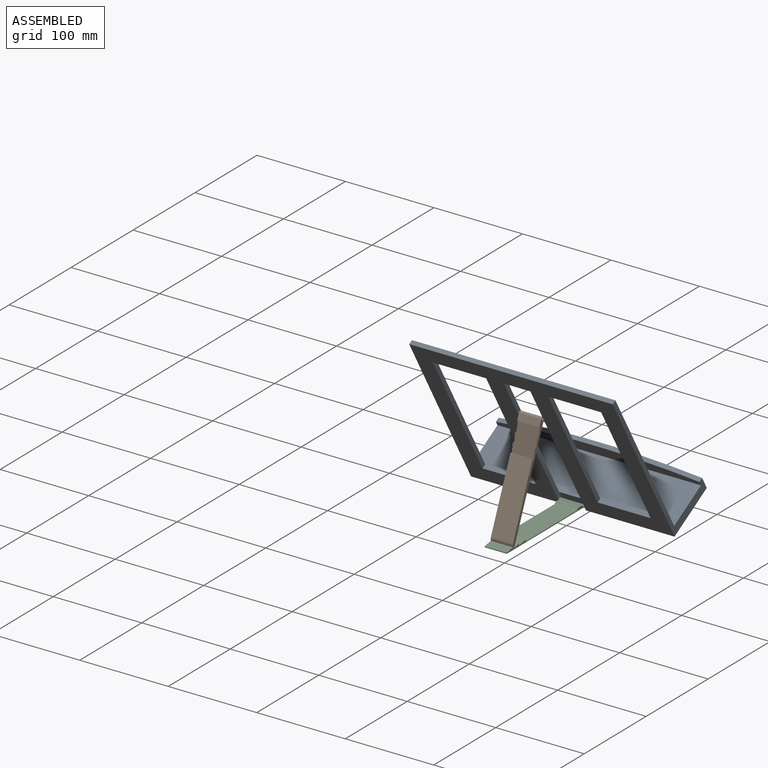
[diagram: assembled view]
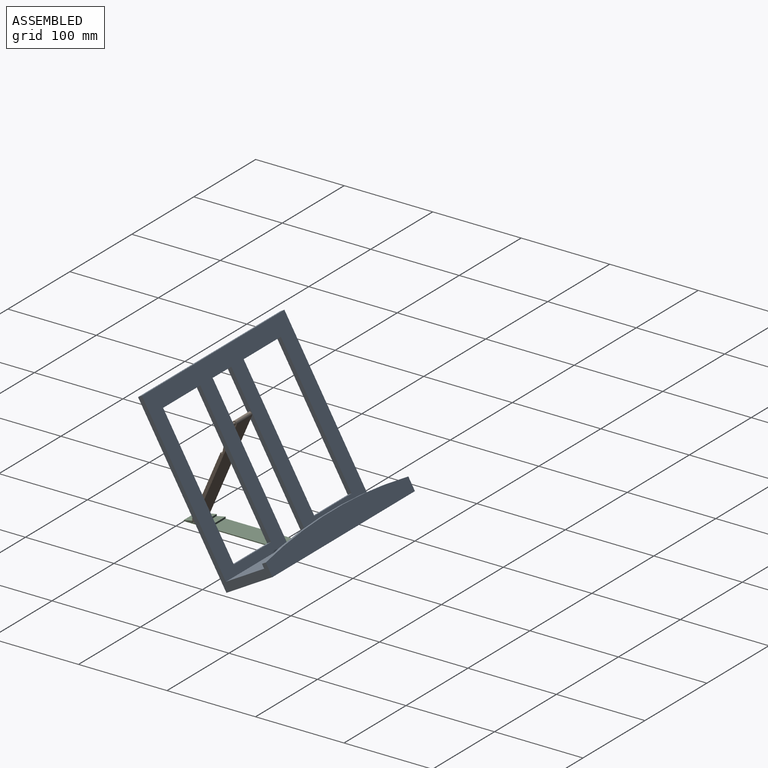
[diagram: assembled view, second angle]
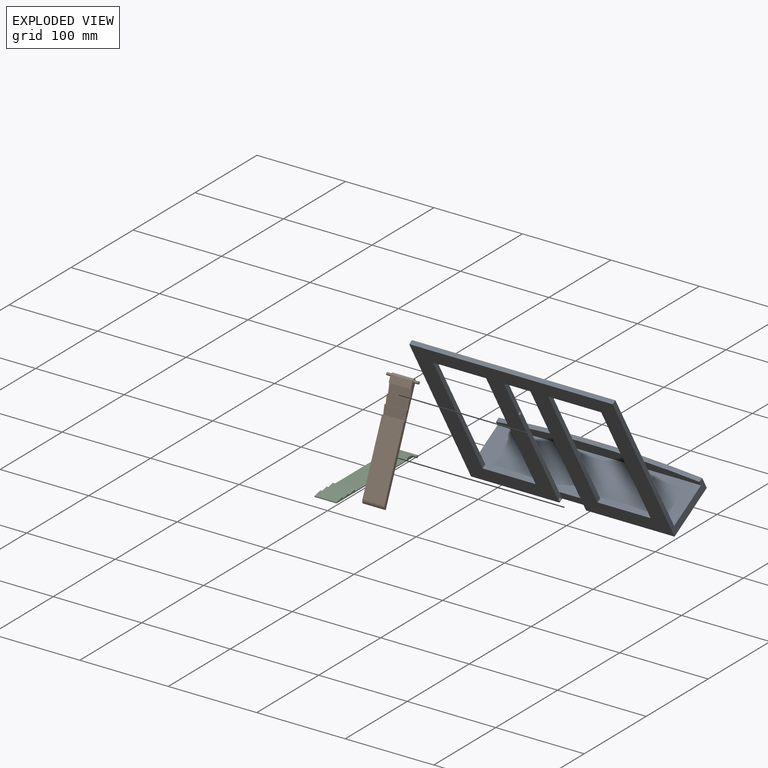
[diagram: exploded view]
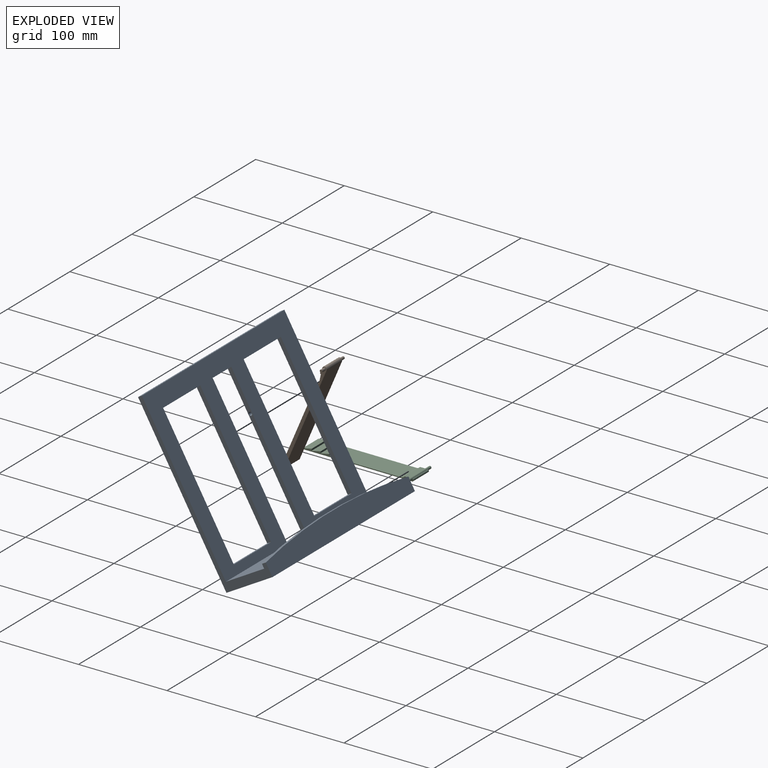
[diagram: exploded view, second angle]
ASSEMBLY  parts=3 mates=2
PART A: 30 faces, bbox 230x60x200 mm
  f0: plane 230x60mm, normal (0,0,-1), area 13650mm2, adj f3,f10,f12,f15,f16,f17,f21
  f1: plane 230x190mm, normal (0,1,0), area 19400mm2, adj f2,f3,f4,f5,f6,f7,f8,f9
  f2: plane 30x5mm, normal (0,0,-1), area 150mm2, adj f1,f3,f15,f16
  f3: plane 180x5mm, normal (-1,0,0), area 874.9mm2, adj f0,f1,f2,f16,f21,f26,f28
  f4: plane 60x5mm, normal (0,0,1), area 300mm2, adj f1,f5,f13,f16
  f5: plane 160x5mm, normal (1,0,0), area 800mm2, adj f1,f4,f6,f16
  f6: plane 60x5mm, normal (0,0,-1), area 300mm2, adj f1,f5,f13,f16
  f7: plane 160x5mm, normal (-1,0,0), area 800mm2, adj f1,f8,f14,f16
  f8: plane 60x5mm, normal (0,0,1), area 300mm2, adj f1,f7,f9,f16
  f9: plane 160x5mm, normal (1,0,0), area 800mm2, adj f1,f8,f14,f16
  f10: plane 200x60mm, normal (1,0,0), area 1575mm2, adj f0,f1,f11,f16,f17,f18,f19,f20
  f11: plane 230x5mm, normal (0,0,1), area 1150mm2, adj f1,f10,f12,f16
  f12: plane 200x60mm, normal (-1,0,0), area 1575mm2, adj f0,f1,f11,f16,f17,f18,f19,f20
  f13: plane 160x5mm, normal (-1,0,0), area 800mm2, adj f1,f4,f6,f16
  f14: plane 60x5mm, normal (0,0,-1), area 300mm2, adj f1,f7,f9,f16
  f15: plane 180x5mm, normal (1,0,0), area 874.9mm2, adj f0,f1,f2,f16,f21,f23,f25
  f16: plane 230x200mm, normal (0,-1,0), area 21400mm2, adj f0,f2,f3,f4,f5,f6,f7,f8
  f17: plane 230x24.42mm, normal (0,1,0), area 4895.8mm2, adj f0,f10,f12,f20
  f18: plane 230x14.42mm, normal (0,-1,0), area 2595.8mm2, adj f10,f12,f19,f20
  f19: plane 230x50mm, normal (0,0,1), area 11500mm2, adj f1,f10,f12,f18,f21
  f20: cylinder r=706.92mm len=230mm, axis (0,1,0), area 1155.1mm2, adj f10,f12,f17,f18
  f21: plane 30x10mm, normal (0,-1,0), area 300mm2, adj f0,f3,f15,f19
  f22: plane 4x4mm, normal (1,0,0), area 12.6mm2, adj f23
  f23: cylinder r=2mm len=5mm, axis (1,0,0), area 62.8mm2, adj f15,f22
  f24: plane 4x4mm, normal (1,0,0), area 12.6mm2, adj f25
  f25: cylinder r=2mm len=5mm, axis (1,0,0), area 62.8mm2, adj f15,f24
  f26: cylinder r=2mm len=5mm, axis (1,0,0), area 62.8mm2, adj f3,f27
  f27: plane 4x4mm, normal (-1,0,0), area 12.6mm2, adj f26
  f28: cylinder r=2mm len=5mm, axis (1,0,0), area 62.8mm2, adj f3,f29
  f29: plane 4x4mm, normal (-1,0,0), area 12.6mm2, adj f28
PART B: 20 faces, bbox 36x5x125 mm
  f0: plane 25x1.49mm, normal (0,0,-1), area 37.1mm2, adj f1,f2,f4,f19
  f1: plane 125x5mm, normal (-1,0,0), area 443.1mm2, adj f0,f3,f4,f5,f6,f7,f8,f9
  f2: plane 125x5mm, normal (1,0,0), area 443.1mm2, adj f0,f3,f4,f5,f6,f7,f8,f9
  f3: plane 25x7.3mm, normal (0,-1,0), area 182.5mm2, adj f1,f2,f13,f18
  f4: plane 122.5x25mm, normal (0,1,0), area 3062.5mm2, adj f0,f1,f2,f18
  f5: plane 25x2mm, normal (0,0,1), area 50mm2, adj f1,f2,f6,f7
  f6: plane 25x10mm, normal (0,-0.98,-0.2), area 255mm2, adj f1,f2,f5,f8
  f7: plane 25x10.4mm, normal (0,-0.98,-0.2), area 265.1mm2, adj f1,f2,f5,f13
  f8: plane 25x2mm, normal (0,0,1), area 50mm2, adj f1,f2,f6,f9
  f9: plane 25x10mm, normal (0,-0.98,-0.2), area 255mm2, adj f1,f2,f8,f10
  f10: plane 25x2.04mm, normal (0,0,1), area 51.1mm2, adj f1,f2,f9,f11
  f11: plane 80.8x25mm, normal (0,-1,0), area 2020mm2, adj f1,f2,f10,f12
  f12: cylinder r=4.8mm len=25mm, axis (1,0,0), area 113.8mm2, adj f1,f2,f11,f19
  f13: plane 25x1.16mm, normal (0,0,-1), area 29.1mm2, adj f1,f2,f3,f7
  f14: plane 3x3mm, normal (1,0,0), area 7.1mm2, adj f15
  f15: cylinder r=1.5mm len=5.5mm, axis (-1,0,0), area 51.8mm2, adj f2,f14
  f16: cylinder r=1.5mm len=5.5mm, axis (-1,0,0), area 51.8mm2, adj f1,f17
  f17: plane 3x3mm, normal (-1,0,0), area 7.1mm2, adj f16
  f18: cylinder r=2.5mm len=25mm, axis (-1,0,0), area 196.3mm2, adj f1,f2,f3,f4
  f19: cylinder r=0.54mm len=25mm, axis (1,0,0), area 8.4mm2, adj f0,f1,f2,f12
PART C: 17 faces, bbox 36x4x125 mm
  f0: plane 125x3mm, normal (1,0,0), area 171.4mm2, adj f2,f3,f4,f5,f6,f9,f10,f11
  f1: plane 125x3mm, normal (-1,0,0), area 171.4mm2, adj f2,f3,f4,f5,f6,f9,f10,f11
  f2: plane 25x6.09mm, normal (0,1,0), area 152.1mm2, adj f0,f1,f6,f16
  f3: cylinder r=1.5mm len=25mm, axis (-1,0,0), area 106.8mm2, adj f0,f1,f5,f6
  f4: plane 25x1mm, normal (0,0,1), area 25mm2, adj f0,f1,f5,f11
  f5: plane 123.5x25mm, normal (0,-1,0), area 3087.5mm2, adj f0,f1,f3,f4
  f6: cylinder r=1.5mm len=36mm, axis (-1,0,0), area 197.7mm2, adj f0,f1,f2,f3,f7,f8
  f7: plane 3x3mm, normal (1,0,0), area 7.1mm2, adj f6
  f8: plane 3x3mm, normal (-1,0,0), area 7.1mm2, adj f6
  f9: plane 25x2mm, normal (0,0,-1), area 50mm2, adj f0,f1,f10,f11
  f10: plane 25x10mm, normal (0,0.98,0.2), area 255mm2, adj f0,f1,f9,f12
  f11: plane 25x10mm, normal (0,0.98,0.2), area 255mm2, adj f0,f1,f4,f9
  f12: plane 25x2mm, normal (0,0,-1), area 50mm2, adj f0,f1,f10,f13
  f13: plane 25x10mm, normal (0,0.98,0.2), area 255mm2, adj f0,f1,f12,f14
  f14: plane 25x2mm, normal (0,0,-1), area 50mm2, adj f0,f1,f13,f15
  f15: plane 81x25mm, normal (0,1,0), area 2025mm2, adj f0,f1,f14,f16
  f16: cylinder r=5mm len=25mm, axis (1,0,0), area 115.9mm2, adj f0,f1,f2,f15
PLACE A rot(axis=(1,0,0),30deg) t=(-12.93,-19.19,83.66)mm
PLACE B rot(axis=(-1,0,0),23deg) t=(-14.93,-48.12,81.91)mm
PLACE C rot(axis=(1,0,0),90deg) t=(-14.93,-68.01,-0.81)mm fixed
MATE revolute C.f6 <-> A.f25  axis (-1,0,0) through (-32.93,29.49,-0.81)mm
MATE revolute A.f23 <-> B.f15  axis (1,0,0) through (-32.93,-35.42,111.82)mm
